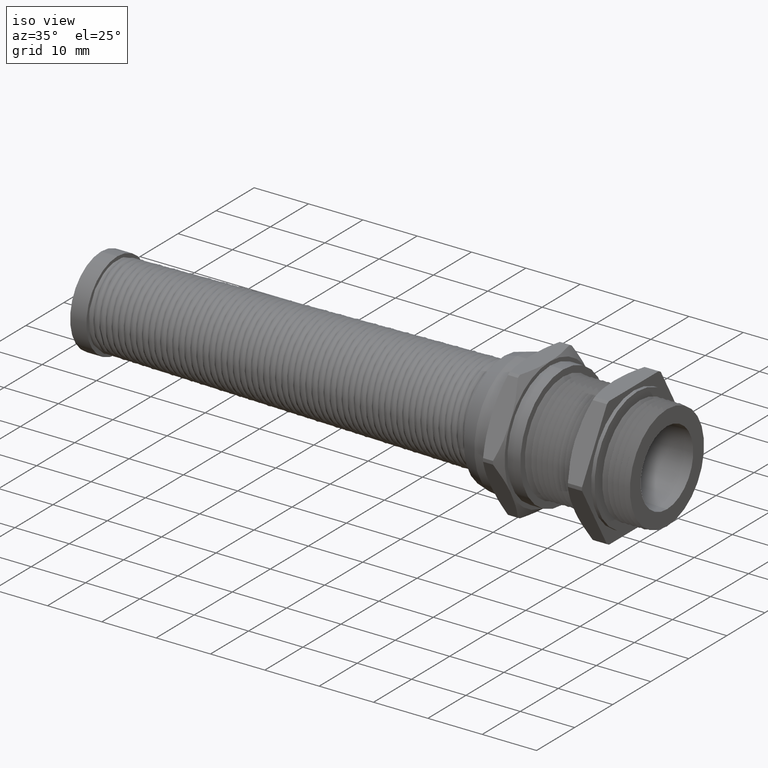
[diagram: clean part render]
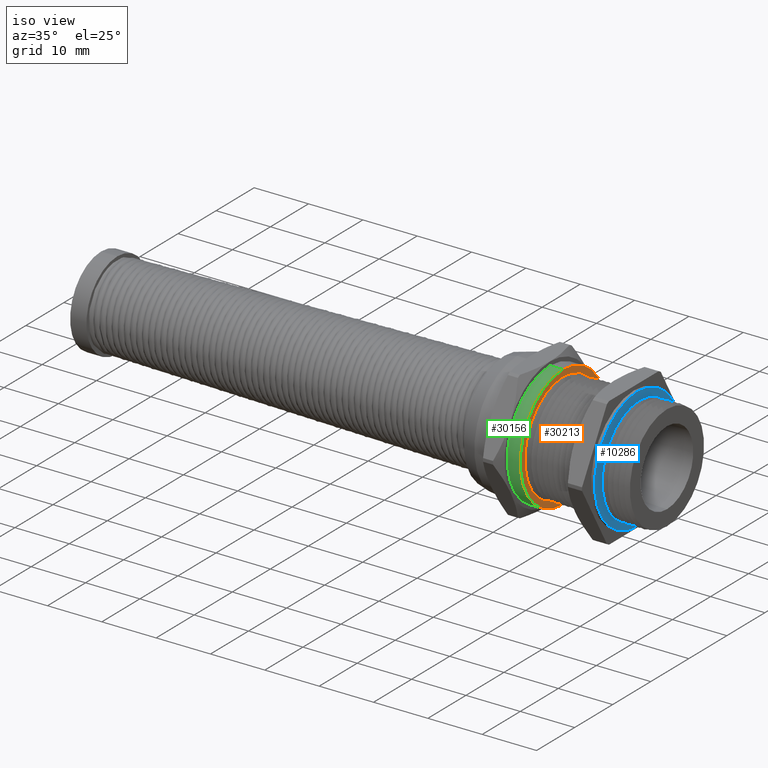
[diagram: same view with three faces highlighted in distinct colors, each labeled with its STEP entity id]
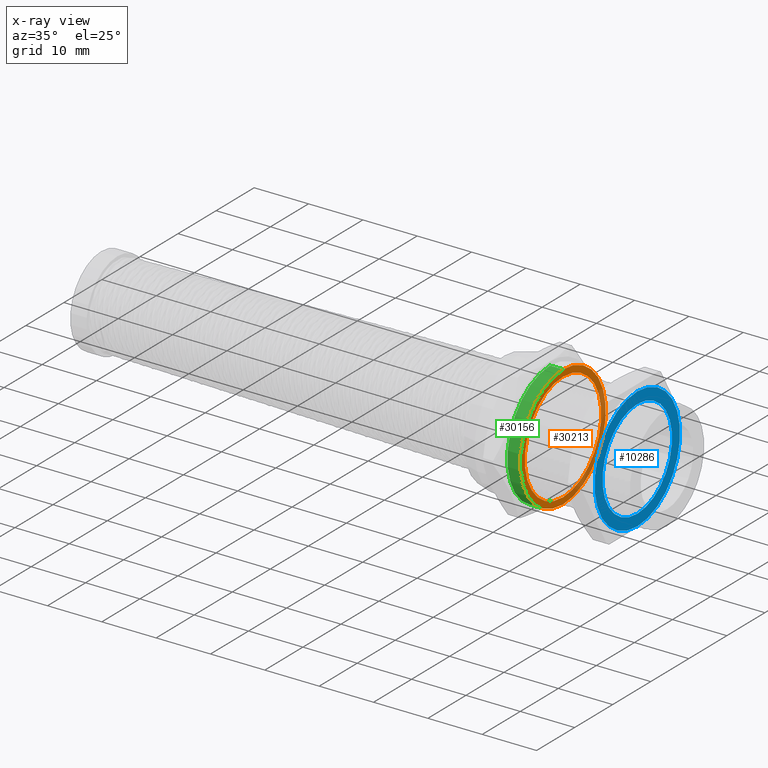
[diagram: x-ray of the same camera — body ghosted, the three highlighted faces saturated]
A machine part, iso view with three faces highlighted in distinct colors.
The next image is the same camera in x-ray (body ghosted, the three faces saturated) — at least one of them is partly hidden behind the body in this view.
Their STEP definitions:

[orange] entity #30213 — the highlighted planar face has unit normal (-1, 0, 0).
#8837 = CARTESIAN_POINT ( 'NONE',  ( -0.1629999999999998700, 0.0000000000000000000, 0.3950000000000000200 ) ) ;
#8838 = CARTESIAN_POINT ( 'NONE',  ( -0.1629999999999998700, 4.837354856632045600E-017, -0.3950000000000000200 ) ) ;
#8839 = DIRECTION ( 'NONE',  ( 0.0000000000000000000, 0.0000000000000000000, 1.000000000000000000 ) ) ;
#8840 = DIRECTION ( 'NONE',  ( -1.000000000000000000, 0.0000000000000000000, 0.0000000000000000000 ) ) ;
#8841 = AXIS2_PLACEMENT_3D ( 'NONE', #8847, #8840, #8839 ) ;
#8842 = CIRCLE ( 'NONE', #8841, 0.3950000000000000200 ) ;
#8847 = CARTESIAN_POINT ( 'NONE',  ( -0.1629999999999998700, 0.0000000000000000000, 0.0000000000000000000 ) ) ;
#8934 = DIRECTION ( 'NONE',  ( 0.0000000000000000000, 0.0000000000000000000, 1.000000000000000000 ) ) ;
#8935 = DIRECTION ( 'NONE',  ( -1.000000000000000000, 0.0000000000000000000, 0.0000000000000000000 ) ) ;
#8936 = CARTESIAN_POINT ( 'NONE',  ( -0.1629999999999998700, 0.0000000000000000000, 0.0000000000000000000 ) ) ;
#8937 = AXIS2_PLACEMENT_3D ( 'NONE', #8936, #8935, #8934 ) ;
#8938 = CIRCLE ( 'NONE', #8937, 0.4420349999999999600 ) ;
#8939 = CARTESIAN_POINT ( 'NONE',  ( -0.1629999999999998700, 0.0000000000000000000, 0.4420349999999999600 ) ) ;
#8941 = CARTESIAN_POINT ( 'NONE',  ( -0.1629999999999998700, 5.413367478611002500E-017, -0.4420349999999999600 ) ) ;
#9576 = AXIS2_PLACEMENT_3D ( 'NONE', #9636, #9635, #9634 ) ;
#9577 = CIRCLE ( 'NONE', #9576, 0.3950000000000000200 ) ;
#9612 = DIRECTION ( 'NONE',  ( 0.0000000000000000000, 0.0000000000000000000, 1.000000000000000000 ) ) ;
#9613 = DIRECTION ( 'NONE',  ( -1.000000000000000000, 0.0000000000000000000, 0.0000000000000000000 ) ) ;
#9614 = CARTESIAN_POINT ( 'NONE',  ( -0.1629999999999998700, 0.0000000000000000000, 0.0000000000000000000 ) ) ;
#9615 = AXIS2_PLACEMENT_3D ( 'NONE', #9614, #9613, #9612 ) ;
#9620 = CIRCLE ( 'NONE', #9615, 0.4420349999999999600 ) ;
#9634 = DIRECTION ( 'NONE',  ( 0.0000000000000000000, 0.0000000000000000000, 1.000000000000000000 ) ) ;
#9635 = DIRECTION ( 'NONE',  ( -1.000000000000000000, 0.0000000000000000000, 0.0000000000000000000 ) ) ;
#9636 = CARTESIAN_POINT ( 'NONE',  ( -0.1629999999999998700, 0.0000000000000000000, 0.0000000000000000000 ) ) ;
#9678 = DIRECTION ( 'NONE',  ( 0.0000000000000000000, 0.0000000000000000000, 1.000000000000000000 ) ) ;
#9679 = DIRECTION ( 'NONE',  ( -1.000000000000000000, 0.0000000000000000000, 0.0000000000000000000 ) ) ;
#9680 = CARTESIAN_POINT ( 'NONE',  ( -0.1629999999999999800, 0.4420349999999999600, 0.0000000000000000000 ) ) ;
#9681 = AXIS2_PLACEMENT_3D ( 'NONE', #9680, #9679, #9678 ) ;
#9682 = FACE_BOUND ( 'NONE', #30216, .T. ) ;
#9683 = FACE_OUTER_BOUND ( 'NONE', #30162, .T. ) ;
#9687 = PLANE ( 'NONE',  #9681 ) ;
#10907 = EDGE_CURVE ( 'NONE', #10910, #10908, #8842, .T. ) ;
#10908 = VERTEX_POINT ( 'NONE', #8838 ) ;
#10910 = VERTEX_POINT ( 'NONE', #8837 ) ;
#10965 = VERTEX_POINT ( 'NONE', #8941 ) ;
#10967 = VERTEX_POINT ( 'NONE', #8939 ) ;
#10970 = EDGE_CURVE ( 'NONE', #10967, #10965, #8938, .T. ) ;
#30145 = EDGE_CURVE ( 'NONE', #10908, #10910, #9577, .T. ) ;
#30160 = EDGE_CURVE ( 'NONE', #10965, #10967, #9620, .T. ) ;
#30162 = EDGE_LOOP ( 'NONE', ( #30214, #30215 ) ) ;
#30213 = ADVANCED_FACE ( 'NONE', ( #9683, #9682 ), #9687, .F. ) ;
#30214 = ORIENTED_EDGE ( 'NONE', *, *, #10970, .F. ) ;
#30215 = ORIENTED_EDGE ( 'NONE', *, *, #30160, .F. ) ;
#30216 = EDGE_LOOP ( 'NONE', ( #30217, #30218 ) ) ;
#30217 = ORIENTED_EDGE ( 'NONE', *, *, #10907, .T. ) ;
#30218 = ORIENTED_EDGE ( 'NONE', *, *, #30145, .T. ) ;

[blue] entity #10286 — the highlighted planar face has unit normal (1, 0, 0).
#8487 = CARTESIAN_POINT ( 'NONE',  ( 0.3749999999999999400, 0.0000000000000000000, 0.4420349999999999600 ) ) ;
#8488 = DIRECTION ( 'NONE',  ( 0.0000000000000000000, 0.0000000000000000000, -1.000000000000000000 ) ) ;
#8489 = DIRECTION ( 'NONE',  ( 1.000000000000000000, 0.0000000000000000000, 0.0000000000000000000 ) ) ;
#8490 = CARTESIAN_POINT ( 'NONE',  ( 0.3749999999999999400, 0.0000000000000000000, 0.0000000000000000000 ) ) ;
#8491 = AXIS2_PLACEMENT_3D ( 'NONE', #8490, #8489, #8488 ) ;
#8492 = CIRCLE ( 'NONE', #8491, 0.4420349999999999600 ) ;
#8493 = CARTESIAN_POINT ( 'NONE',  ( 0.3749999999999999400, 5.413367478611002500E-017, -0.4420349999999999600 ) ) ;
#10028 = EDGE_CURVE ( 'NONE', #10389, #10388, #11172, .T. ) ;
#10286 = ADVANCED_FACE ( 'NONE', ( #11464, #11470 ), #11469, .T. ) ;
#10287 = EDGE_LOOP ( 'NONE', ( #10288, #10289 ) ) ;
#10288 = ORIENTED_EDGE ( 'NONE', *, *, #10028, .T. ) ;
#10289 = ORIENTED_EDGE ( 'NONE', *, *, #10465, .T. ) ;
#10290 = EDGE_LOOP ( 'NONE', ( #10341, #10343 ) ) ;
#10341 = ORIENTED_EDGE ( 'NONE', *, *, #10342, .T. ) ;
#10342 = EDGE_CURVE ( 'NONE', #10738, #10730, #11617, .T. ) ;
#10343 = ORIENTED_EDGE ( 'NONE', *, *, #10737, .T. ) ;
#10388 = VERTEX_POINT ( 'NONE', #11670 ) ;
#10389 = VERTEX_POINT ( 'NONE', #11669 ) ;
#10465 = EDGE_CURVE ( 'NONE', #10388, #10389, #11794, .T. ) ;
#10730 = VERTEX_POINT ( 'NONE', #8493 ) ;
#10737 = EDGE_CURVE ( 'NONE', #10730, #10738, #8492, .T. ) ;
#10738 = VERTEX_POINT ( 'NONE', #8487 ) ;
#11168 = DIRECTION ( 'NONE',  ( 0.0000000000000000000, 0.0000000000000000000, -1.000000000000000000 ) ) ;
#11169 = DIRECTION ( 'NONE',  ( -1.000000000000000000, 0.0000000000000000000, 0.0000000000000000000 ) ) ;
#11170 = CARTESIAN_POINT ( 'NONE',  ( 0.3749999999999999400, 0.0000000000000000000, 0.0000000000000000000 ) ) ;
#11171 = AXIS2_PLACEMENT_3D ( 'NONE', #11170, #11169, #11168 ) ;
#11172 = CIRCLE ( 'NONE', #11171, 0.3592410579609829900 ) ;
#11464 = FACE_BOUND ( 'NONE', #10287, .T. ) ;
#11469 = PLANE ( 'NONE',  #11527 ) ;
#11470 = FACE_OUTER_BOUND ( 'NONE', #10290, .T. ) ;
#11524 = DIRECTION ( 'NONE',  ( 0.0000000000000000000, 0.0000000000000000000, -1.000000000000000000 ) ) ;
#11525 = DIRECTION ( 'NONE',  ( 1.000000000000000000, 0.0000000000000000000, 0.0000000000000000000 ) ) ;
#11526 = CARTESIAN_POINT ( 'NONE',  ( 0.3749999999999999400, 0.0000000000000000000, 0.0000000000000000000 ) ) ;
#11527 = AXIS2_PLACEMENT_3D ( 'NONE', #11526, #11525, #11524 ) ;
#11613 = DIRECTION ( 'NONE',  ( 0.0000000000000000000, 0.0000000000000000000, -1.000000000000000000 ) ) ;
#11614 = DIRECTION ( 'NONE',  ( 1.000000000000000000, 0.0000000000000000000, 0.0000000000000000000 ) ) ;
#11615 = CARTESIAN_POINT ( 'NONE',  ( 0.3749999999999999400, 0.0000000000000000000, 0.0000000000000000000 ) ) ;
#11616 = AXIS2_PLACEMENT_3D ( 'NONE', #11615, #11614, #11613 ) ;
#11617 = CIRCLE ( 'NONE', #11616, 0.4420349999999999600 ) ;
#11669 = CARTESIAN_POINT ( 'NONE',  ( 0.3749999999999999400, 0.0000000000000000000, -0.3592410579609829900 ) ) ;
#11670 = CARTESIAN_POINT ( 'NONE',  ( 0.3749999999999999400, 4.581768625549627300E-017, 0.3592410579609829900 ) ) ;
#11791 = DIRECTION ( 'NONE',  ( 0.0000000000000000000, 0.0000000000000000000, -1.000000000000000000 ) ) ;
#11792 = DIRECTION ( 'NONE',  ( -1.000000000000000000, 0.0000000000000000000, 0.0000000000000000000 ) ) ;
#11793 = AXIS2_PLACEMENT_3D ( 'NONE', #11799, #11792, #11791 ) ;
#11794 = CIRCLE ( 'NONE', #11793, 0.3592410579609829900 ) ;
#11799 = CARTESIAN_POINT ( 'NONE',  ( 0.3749999999999999400, 0.0000000000000000000, 0.0000000000000000000 ) ) ;

[green] entity #30156 — the highlighted cylindrical surface (partial cylindrical patch) has radius 11.2277 mm, axis along (-1, 0, 0).
#8939 = CARTESIAN_POINT ( 'NONE',  ( -0.1629999999999998700, 0.0000000000000000000, 0.4420349999999999600 ) ) ;
#8940 = CARTESIAN_POINT ( 'NONE',  ( -0.2570000000000000100, 5.413367478611002500E-017, -0.4420349999999999600 ) ) ;
#8941 = CARTESIAN_POINT ( 'NONE',  ( -0.1629999999999998700, 5.413367478611002500E-017, -0.4420349999999999600 ) ) ;
#8948 = DIRECTION ( 'NONE',  ( -1.000000000000000000, 0.0000000000000000000, 0.0000000000000000000 ) ) ;
#8949 = VECTOR ( 'NONE', #8948, 39.37007874015748100 ) ;
#8950 = CARTESIAN_POINT ( 'NONE',  ( -2.719493435091831800, 5.413367478611002500E-017, -0.4420349999999999600 ) ) ;
#8951 = LINE ( 'NONE', #8950, #8949 ) ;
#9443 = DIRECTION ( 'NONE',  ( 0.0000000000000000000, 0.0000000000000000000, 1.000000000000000000 ) ) ;
#9444 = DIRECTION ( 'NONE',  ( -1.000000000000000000, 0.0000000000000000000, 0.0000000000000000000 ) ) ;
#9445 = AXIS2_PLACEMENT_3D ( 'NONE', #9452, #9444, #9443 ) ;
#9446 = CIRCLE ( 'NONE', #9445, 0.4420349999999999600 ) ;
#9452 = CARTESIAN_POINT ( 'NONE',  ( -0.2570000000000000100, 0.0000000000000000000, 0.0000000000000000000 ) ) ;
#9612 = DIRECTION ( 'NONE',  ( 0.0000000000000000000, 0.0000000000000000000, 1.000000000000000000 ) ) ;
#9613 = DIRECTION ( 'NONE',  ( -1.000000000000000000, 0.0000000000000000000, 0.0000000000000000000 ) ) ;
#9614 = CARTESIAN_POINT ( 'NONE',  ( -0.1629999999999998700, 0.0000000000000000000, 0.0000000000000000000 ) ) ;
#9615 = AXIS2_PLACEMENT_3D ( 'NONE', #9614, #9613, #9612 ) ;
#9616 = DIRECTION ( 'NONE',  ( 0.0000000000000000000, 0.0000000000000000000, 1.000000000000000000 ) ) ;
#9617 = DIRECTION ( 'NONE',  ( -1.000000000000000000, 0.0000000000000000000, 0.0000000000000000000 ) ) ;
#9618 = CARTESIAN_POINT ( 'NONE',  ( -2.719493435091831800, 0.0000000000000000000, 0.0000000000000000000 ) ) ;
#9619 = AXIS2_PLACEMENT_3D ( 'NONE', #9618, #9617, #9616 ) ;
#9620 = CIRCLE ( 'NONE', #9615, 0.4420349999999999600 ) ;
#9621 = CYLINDRICAL_SURFACE ( 'NONE', #9619, 0.4420349999999999600 ) ;
#9622 = FACE_OUTER_BOUND ( 'NONE', #30157, .T. ) ;
#10492 = EDGE_CURVE ( 'NONE', #10967, #10501, #11860, .T. ) ;
#10501 = VERTEX_POINT ( 'NONE', #11843 ) ;
#10963 = EDGE_CURVE ( 'NONE', #10965, #10966, #8951, .T. ) ;
#10965 = VERTEX_POINT ( 'NONE', #8941 ) ;
#10966 = VERTEX_POINT ( 'NONE', #8940 ) ;
#10967 = VERTEX_POINT ( 'NONE', #8939 ) ;
#11843 = CARTESIAN_POINT ( 'NONE',  ( -0.2570000000000000100, 0.0000000000000000000, 0.4420349999999999600 ) ) ;
#11857 = DIRECTION ( 'NONE',  ( -1.000000000000000000, 0.0000000000000000000, 0.0000000000000000000 ) ) ;
#11858 = VECTOR ( 'NONE', #11857, 39.37007874015748100 ) ;
#11859 = CARTESIAN_POINT ( 'NONE',  ( -2.719493435091831800, 0.0000000000000000000, 0.4420349999999999600 ) ) ;
#11860 = LINE ( 'NONE', #11859, #11858 ) ;
#30076 = EDGE_CURVE ( 'NONE', #10966, #10501, #9446, .T. ) ;
#30156 = ADVANCED_FACE ( 'NONE', ( #9622 ), #9621, .T. ) ;
#30157 = EDGE_LOOP ( 'NONE', ( #30158, #30159, #30161, #30212 ) ) ;
#30158 = ORIENTED_EDGE ( 'NONE', *, *, #10963, .F. ) ;
#30159 = ORIENTED_EDGE ( 'NONE', *, *, #30160, .T. ) ;
#30160 = EDGE_CURVE ( 'NONE', #10965, #10967, #9620, .T. ) ;
#30161 = ORIENTED_EDGE ( 'NONE', *, *, #10492, .T. ) ;
#30212 = ORIENTED_EDGE ( 'NONE', *, *, #30076, .F. ) ;